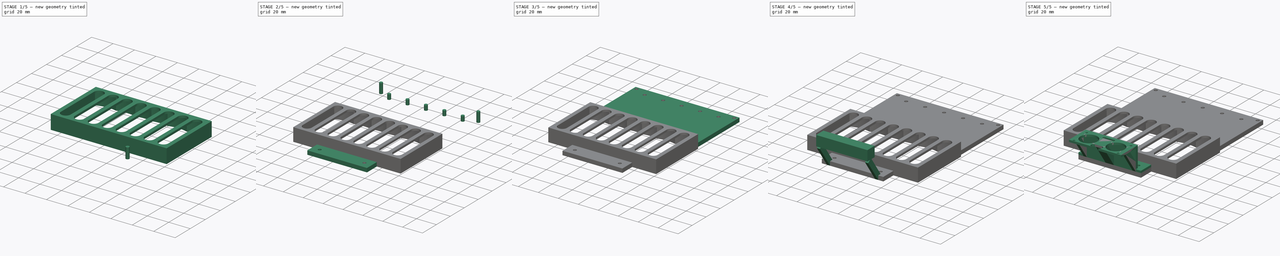
[diagram: build sequence overview — one tinted view per stage of 5, left to right]
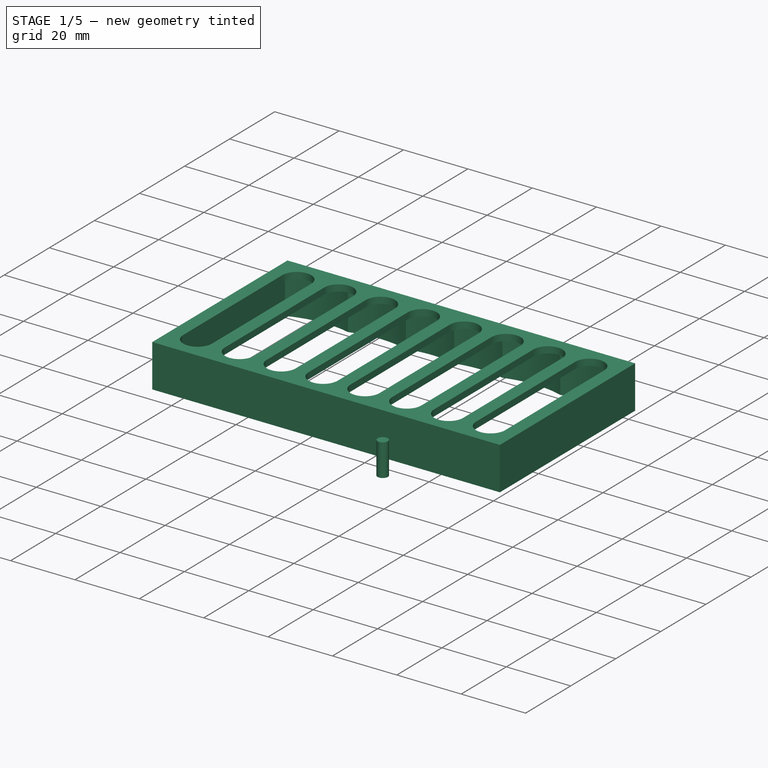
[diagram: stage 1 of 5 — iso view after this stage's code; geometry added in this stage tinted green]
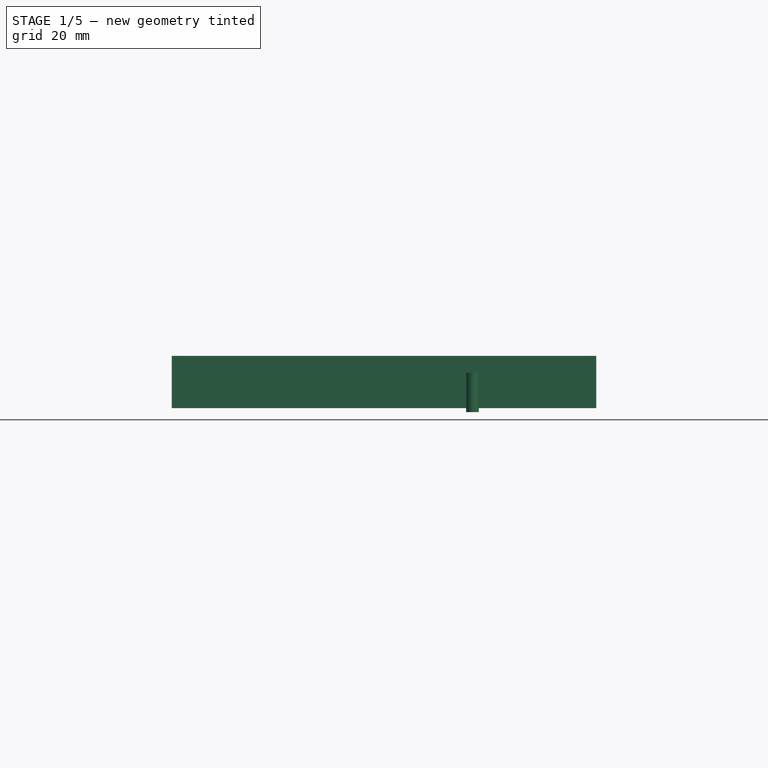
[diagram: stage 1 of 5 — front view after this stage's code; geometry added in this stage tinted green]
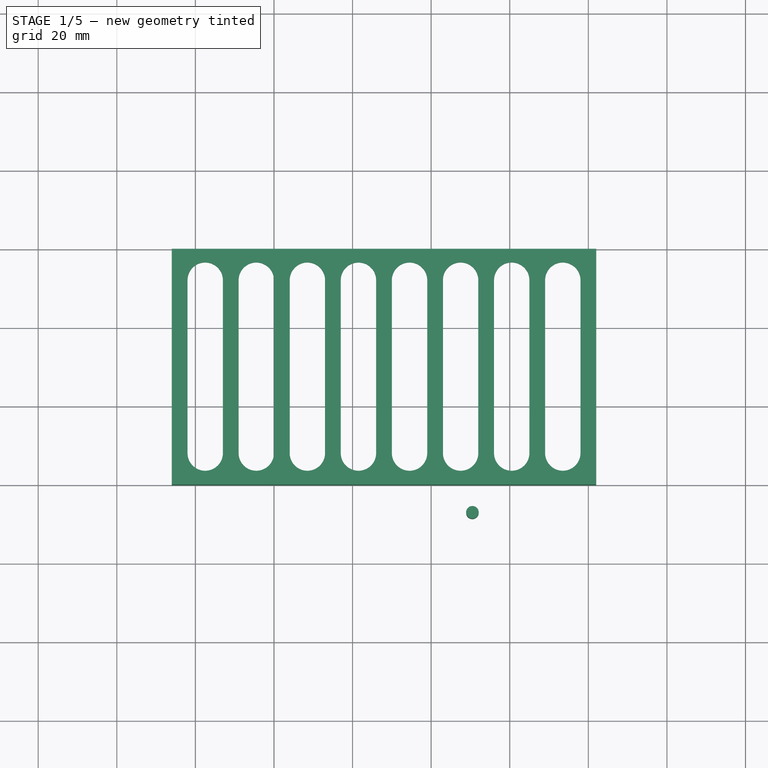
[diagram: stage 1 of 5 — top view after this stage's code; geometry added in this stage tinted green]
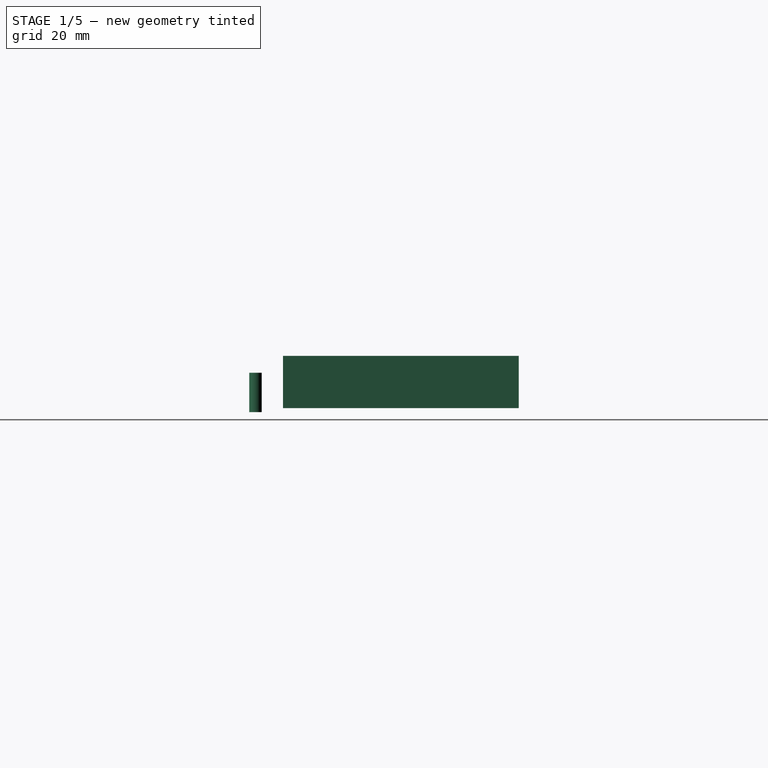
[diagram: stage 1 of 5 — right view after this stage's code; geometry added in this stage tinted green]
FCSTD DOCUMENT  (FreeCAD 1.0R39285 (Git))
Label: BottomPlatform
License: All rights reserved
LicenseURL: https://en.wikipedia.org/wiki/All_rights_reserved
objects: Part::Cut×13, Part::Box×11, Part::Cylinder×8, Sketcher::SketchObject×4, Part::Extrusion×4, Part::MultiFuse×4
note: 48 computed .brp shape members not serialized (recipe doc carries the construction recipe); baked Part::Feature solids carry a one-line shape summary decoded from their .brp

FEATURE [Part::Box] Box002  label="Cube002"
  AttacherType = Attacher::AttachEngine3D
  Height = 11.3
  Length = 108
  Placement = pos=(-54,-30,0) rot=(0,0,1;0rad)
  Width = 60
FEATURE [Sketcher::SketchObject] Sketch001
  ArcFitTolerance = 1e-06
  FullyConstrained = true
  MakeInternals = false
  sketch-geometry (14):
    g0: LineSegment StartX=51.7 StartY=-25.6145 StartZ=0 EndX=51.7 EndY=25.6145 EndZ=0
    g1: LineSegment StartX=-51.7 StartY=25.6145 StartZ=0 EndX=-51.7 EndY=-25.6145 EndZ=0
    g2: ArcOfCircle CenterX=-40.5 CenterY=-1.76818 CenterZ=0 NormalX=0 NormalY=0 NormalZ=1 AngleXU=0 Radius=29.5846 StartAngle=1.31449 EndAngle=1.95905
    g3: ArcOfCircle CenterX=-24 CenterY=-1.76818 CenterZ=0 NormalX=0 NormalY=0 NormalZ=1 AngleXU=0 Radius=30 StartAngle=1.2661 EndAngle=1.87549
    g4: ArcOfCircle CenterX=-7.5 CenterY=-1.76818 CenterZ=0 NormalX=0 NormalY=0 NormalZ=1 AngleXU=0 Radius=29.5846 StartAngle=1.31449 EndAngle=1.8271
    g5: ArcOfCircle CenterX=7.5 CenterY=-1.76818 CenterZ=0 NormalX=0 NormalY=0 NormalZ=1 AngleXU=0 Radius=29.5846 StartAngle=1.31449 EndAngle=1.8271
    g6: ArcOfCircle CenterX=24 CenterY=-1.76818 CenterZ=0 NormalX=0 NormalY=0 NormalZ=1 AngleXU=0 Radius=30 StartAngle=1.2661 EndAngle=1.87549
    g7: ArcOfCircle CenterX=40.5 CenterY=-1.76818 CenterZ=0 NormalX=0 NormalY=0 NormalZ=1 AngleXU=0 Radius=29.5846 StartAngle=1.18254 EndAngle=1.8271
    g8: ArcOfCircle CenterX=-40.5 CenterY=1.76818 CenterZ=0 NormalX=0 NormalY=0 NormalZ=1 AngleXU=0 Radius=29.5846 StartAngle=4.32413 EndAngle=4.9687
    g9: ArcOfCircle CenterX=-24 CenterY=1.76818 CenterZ=0 NormalX=0 NormalY=0 NormalZ=1 AngleXU=0 Radius=30 StartAngle=4.4077 EndAngle=5.01708
    g10: ArcOfCircle CenterX=-7.5 CenterY=1.76818 CenterZ=0 NormalX=0 NormalY=0 NormalZ=1 AngleXU=0 Radius=29.5846 StartAngle=4.45608 EndAngle=4.9687
    g11: ArcOfCircle CenterX=7.5 CenterY=1.76818 CenterZ=0 NormalX=0 NormalY=0 NormalZ=1 AngleXU=0 Radius=29.5846 StartAngle=4.45608 EndAngle=4.9687
    g12: ArcOfCircle CenterX=24 CenterY=1.76818 CenterZ=0 NormalX=0 NormalY=0 NormalZ=1 AngleXU=0 Radius=30 StartAngle=4.4077 EndAngle=5.01708
    g13: ArcOfCircle CenterX=40.5 CenterY=1.76818 CenterZ=0 NormalX=0 NormalY=0 NormalZ=1 AngleXU=0 Radius=29.5846 StartAngle=4.45608 EndAngle=5.10065
  constraints (46):
    c: Vertical(g0)
    c: Coincident(g2,g1)
    c: Coincident(g3,g2)
    c: Coincident(g4,g3)
    c: Coincident(g5,g4)
    c: Coincident(g6,g5)
    c: Coincident(g7,g6)
    c: Coincident(g7,g0)
    c: Vertical(g1)
    c: Horizontal(g1,g0)
    c: Horizontal(g7,g6)
    c: Horizontal(g6,g5)
    c: Horizontal(g3,g2)
    c: Horizontal(g6,g5)
    c: Horizontal(g5,g4)
    c: Horizontal(g4,g3)
    c: Horizontal(g3,g2)
    c: PointOnObject(g4,g-2)
    c: Symmetric(g0,g1,g-2)
    c: Symmetric(g5,g4,g-2)
    c: Symmetric(g6,g3,g-2)
    c: Distance(g0,g1) = 103.4
    c: Coincident(g8,g1)
    c: Coincident(g9,g8)
    c: Coincident(g10,g9)
    c: Coincident(g11,g10)
    c: Coincident(g12,g11)
    c: Coincident(g13,g12)
    c: Coincident(g13,g0)
    c: Symmetric(g10,g11,g-2)
    c: Symmetric(g9,g12,g-2)
    c: Symmetric(g13,g8,g-2)
    c: Horizontal(g8,g9)
    c: Horizontal(g9,g10)
    c: Vertical(g8,g2)
    c: Vertical(g3,g9)
    c: Horizontal(g8,g9)
    c: Horizontal(g9,g10)
    c: DistanceY(g12,g6) = 53.7
    c: DistanceX(g4,g5) = 15
    c: DistanceX(g5,g6) = 16.5
    c: DistanceX(g6,g7) = 16.5
    c: Horizontal(g11,g10)
    c: Symmetric(g10,g4,g-1)
    c: Symmetric(g11,g5,g-1)
    c: Distance(g6,g5) = 30
FEATURE [Part::Extrusion] Extrude001
  Base = -> Sketch001
  Dir = (0,0,1)
  DirMode = 2
  FaceMakerClass = Part::FaceMakerBullseye
  FaceMakerMode = 3
  LengthFwd = 16
  LengthRev = 0
  Solid = true
  Symmetric = false
FEATURE [Part::Cut] Cut009  label="Eraser"
  Base = -> Box002
  Placement = pos=(-52,-30,0) rot=(0,0,1;0rad)
  Tool = -> Extrude001
FEATURE [Part::Box] Box  label="Cube"
  AttacherType = Attacher::AttachEngine3D
  Height = 2
  Length = 108
  Placement = pos=(-106,-60,9.8) rot=(0,0,1;0rad)
  Width = 60
FEATURE [Sketcher::SketchObject] Sketch002
  ArcFitTolerance = 1e-06
  FullyConstrained = true
  MakeInternals = false
  Placement = pos=(0,0,9) rot=(0,0,1;0rad)
  sketch-geometry (32):
    g0: ArcOfCircle CenterX=-6.5 CenterY=-8 CenterZ=0 NormalX=0 NormalY=0 NormalZ=1 AngleXU=0 Radius=4.5 StartAngle=-7.1e-15 EndAngle=3.14159
    g1: ArcOfCircle CenterX=-6.5 CenterY=-52 CenterZ=0 NormalX=0 NormalY=0 NormalZ=1 AngleXU=0 Radius=4.5 StartAngle=3.14159 EndAngle=6.28319
    g2: LineSegment StartX=-2 StartY=-8 StartZ=0 EndX=-2 EndY=-52 EndZ=0
    g3: LineSegment StartX=-11 StartY=-8 StartZ=0 EndX=-11 EndY=-52 EndZ=0
    g4: ArcOfCircle CenterX=-32.5 CenterY=-8 CenterZ=0 NormalX=0 NormalY=0 NormalZ=1 AngleXU=0 Radius=4.5 StartAngle=4e-16 EndAngle=3.14159
    g5: ArcOfCircle CenterX=-32.5 CenterY=-52 CenterZ=0 NormalX=0 NormalY=0 NormalZ=1 AngleXU=0 Radius=4.5 StartAngle=3.14159 EndAngle=6.28319
    g6: LineSegment StartX=-28 StartY=-8 StartZ=0 EndX=-28 EndY=-52 EndZ=0
    g7: LineSegment StartX=-37 StartY=-8 StartZ=0 EndX=-37 EndY=-52 EndZ=0
    g8: ArcOfCircle CenterX=-71.5 CenterY=-8 CenterZ=0 NormalX=0 NormalY=0 NormalZ=1 AngleXU=0 Radius=4.5 StartAngle=2e-16 EndAngle=3.14159
    g9: ArcOfCircle CenterX=-71.5 CenterY=-52 CenterZ=0 NormalX=0 NormalY=0 NormalZ=1 AngleXU=0 Radius=4.5 StartAngle=3.14159 EndAngle=6.28319
    g10: LineSegment StartX=-67 StartY=-8 StartZ=0 EndX=-67 EndY=-52 EndZ=0
    g11: LineSegment StartX=-76 StartY=-8 StartZ=0 EndX=-76 EndY=-52 EndZ=0
    g12: ArcOfCircle CenterX=-19.5 CenterY=-8 CenterZ=0 NormalX=0 NormalY=0 NormalZ=1 AngleXU=0 Radius=4.5 StartAngle=2.4e-15 EndAngle=3.14159
    g13: ArcOfCircle CenterX=-19.5 CenterY=-52 CenterZ=0 NormalX=0 NormalY=0 NormalZ=1 AngleXU=0 Radius=4.5 StartAngle=3.14159 EndAngle=6.28319
    g14: LineSegment StartX=-15 StartY=-8 StartZ=0 EndX=-15 EndY=-52 EndZ=0
    g15: LineSegment StartX=-24 StartY=-8 StartZ=0 EndX=-24 EndY=-52 EndZ=0
    g16: ArcOfCircle CenterX=-45.5 CenterY=-8 CenterZ=0 NormalX=0 NormalY=0 NormalZ=1 AngleXU=0 Radius=4.5 StartAngle=4e-16 EndAngle=3.14159
    g17: ArcOfCircle CenterX=-45.5 CenterY=-52 CenterZ=0 NormalX=0 NormalY=0 NormalZ=1 AngleXU=0 Radius=4.5 StartAngle=3.14159 EndAngle=6.28319
    g18: LineSegment StartX=-41 StartY=-8 StartZ=0 EndX=-41 EndY=-52 EndZ=0
    g19: LineSegment StartX=-50 StartY=-8 StartZ=0 EndX=-50 EndY=-52 EndZ=0
    g20: ArcOfCircle CenterX=-84.5 CenterY=-8 CenterZ=0 NormalX=0 NormalY=0 NormalZ=1 AngleXU=0 Radius=4.5 StartAngle=1e-16 EndAngle=3.14159
    g21: ArcOfCircle CenterX=-84.5 CenterY=-52 CenterZ=0 NormalX=0 NormalY=0 NormalZ=1 AngleXU=0 Radius=4.5 StartAngle=3.14159 EndAngle=6.28319
    g22: LineSegment StartX=-80 StartY=-8 StartZ=0 EndX=-80 EndY=-52 EndZ=0
    g23: LineSegment StartX=-89 StartY=-8 StartZ=0 EndX=-89 EndY=-52 EndZ=0
    g24: ArcOfCircle CenterX=-97.5 CenterY=-8 CenterZ=0 NormalX=0 NormalY=0 NormalZ=1 AngleXU=0 Radius=4.5 StartAngle=1e-16 EndAngle=3.14159
    g25: ArcOfCircle CenterX=-97.5 CenterY=-52 CenterZ=0 NormalX=0 NormalY=0 NormalZ=1 AngleXU=0 Radius=4.5 StartAngle=3.14159 EndAngle=6.28319
    g26: LineSegment StartX=-93 StartY=-8 StartZ=0 EndX=-93 EndY=-52 EndZ=0
    g27: LineSegment StartX=-102 StartY=-8 StartZ=0 EndX=-102 EndY=-52 EndZ=0
    g28: ArcOfCircle CenterX=-58.5 CenterY=-8 CenterZ=0 NormalX=0 NormalY=0 NormalZ=1 AngleXU=0 Radius=4.5 StartAngle=3e-16 EndAngle=3.14159
    g29: ArcOfCircle CenterX=-58.5 CenterY=-52 CenterZ=0 NormalX=0 NormalY=0 NormalZ=1 AngleXU=0 Radius=4.5 StartAngle=3.14159 EndAngle=6.28319
    g30: LineSegment StartX=-54 StartY=-8 StartZ=0 EndX=-54 EndY=-52 EndZ=0
    g31: LineSegment StartX=-63 StartY=-8 StartZ=0 EndX=-63 EndY=-52 EndZ=0
  constraints (80):
    c: Tangent(g0,g2) = 1.5708
    c: Tangent(g0,g3) = -1.5708
    c: Tangent(g1,g2) = 1.5708
    c: Tangent(g1,g3) = -1.5708
    c: Equal(g0,g1)
    c: Vertical(g3)
    c: DistanceX(g0,g0) = 4.5
    c: DistanceY(g1,g0) = 44
    c: Distance(g0,g-1) = 8
    c: Distance(g0,g-2) = 6.5
    c: Tangent(g4,g6) = 1.5708
    c: Tangent(g4,g7) = -1.5708
    c: Tangent(g5,g6) = 1.5708
    c: Tangent(g5,g7) = -1.5708
    c: Equal(g4,g5)
    c: Radius(g4) = 4.5
    c: Vertical(g6)
    c: Horizontal(g4,g0)
    c: Horizontal(g5,g1)
    c: Tangent(g8,g10) = 1.5708
    c: Tangent(g8,g11) = -1.5708
    c: Tangent(g9,g10) = 1.5708
    c: Tangent(g9,g11) = -1.5708
    c: Equal(g8,g9)
    c: Radius(g8) = 4.5
    c: Vertical(g10)
    c: Tangent(g12,g14) = 1.5708
    c: Tangent(g12,g15) = -1.5708
    c: Tangent(g13,g14) = 1.5708
    c: Tangent(g13,g15) = -1.5708
    c: Equal(g12,g13)
    c: Radius(g12) = 4.5
    c: Vertical(g14)
    c: Horizontal(g12,g0)
    c: Horizontal(g13,g1)
    c: Horizontal(g9,g1)
    c: Horizontal(g8,g0)
    c: DistanceX(g12,g0) = 13
    c: DistanceX(g4,g12) = 13
    c: Tangent(g16,g18) = 1.5708
    c: Tangent(g16,g19) = -1.5708
    c: Tangent(g17,g18) = 1.5708
    c: Tangent(g17,g19) = -1.5708
    c: Equal(g16,g17)
    c: Radius(g16) = 4.5
    c: Vertical(g18)
    c: Horizontal(g16,g0)
    c: Horizontal(g17,g1)
    c: Tangent(g20,g22) = 1.5708
    c: Tangent(g20,g23) = -1.5708
    c: Tangent(g21,g22) = 1.5708
    c: Tangent(g21,g23) = -1.5708
    c: Equal(g20,g21)
    c: Radius(g20) = 4.5
    c: Vertical(g22)
    c: Tangent(g24,g26) = 1.5708
    c: Tangent(g24,g27) = -1.5708
    c: Tangent(g25,g26) = 1.5708
    c: Tangent(g25,g27) = -1.5708
    c: Equal(g24,g25)
    c: Radius(g24) = 4.5
    c: Vertical(g26)
    c: Horizontal(g20,g0)
    c: Horizontal(g21,g1)
    c: Tangent(g28,g30) = 1.5708
    c: Tangent(g28,g31) = -1.5708
    c: Tangent(g29,g30) = 1.5708
    c: Tangent(g29,g31) = -1.5708
    c: Equal(g28,g29)
    c: Radius(g28) = 4.5
    c: Vertical(g30)
    c: Horizontal(g24,g0)
    c: Horizontal(g25,g1)
    c: DistanceX(g16,g4) = 13
    c: DistanceX(g28,g16) = 13
    c: DistanceX(g8,g28) = 13
    c: DistanceX(g20,g8) = 13
    c: DistanceX(g24,g20) = 13
    c: Horizontal(g29,g1)
    c: Horizontal(g28,g0)
FEATURE [Part::Extrusion] Extrude002
  Base = -> Sketch002
  Dir = (0,0,1)
  DirMode = 2
  FaceMakerClass = Part::FaceMakerBullseye
  FaceMakerMode = 3
  LengthFwd = 10
  LengthRev = 0
  Solid = true
  Symmetric = false
FEATURE [Part::Cut] Cut010  label="Lid"
  Base = -> Box
  Placement = pos=(0,0,1.5) rot=(0,0,1;0rad)
  Tool = -> Extrude002
FEATURE [Part::Cylinder] Cylinder
  Angle = 360
  AttacherType = Attacher::AttachEngine3D
  FirstAngle = 0
  Height = 10
  Placement = pos=(-29.5,-67,-1) rot=(0,0,1;0rad)
  Radius = 1.6
  SecondAngle = 0
FEATURE [Part::MultiFuse] Fusion002  label="Eraser Holder"
  Shapes = -> [Cut009,Cut010]
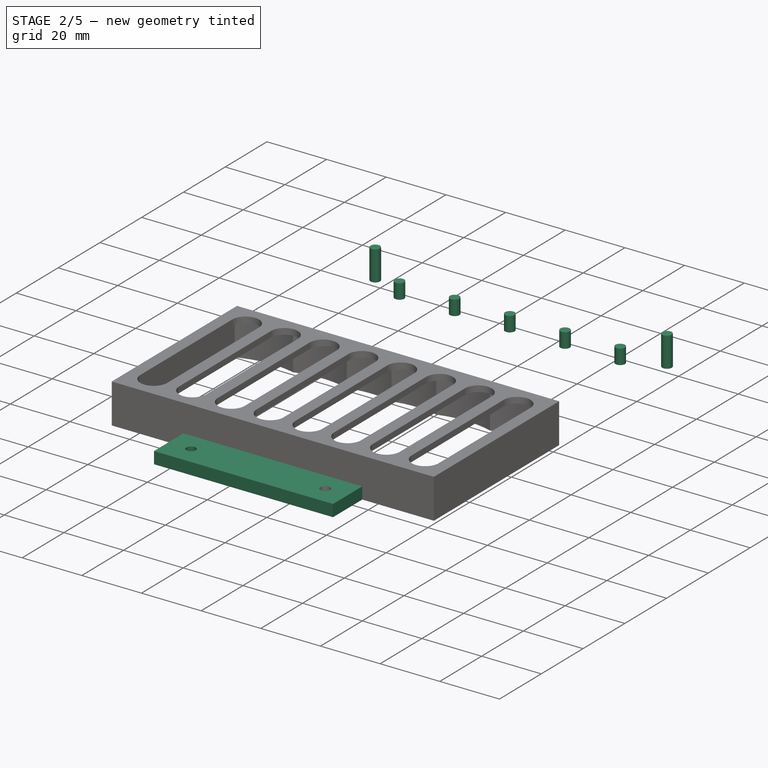
[diagram: stage 2 of 5 — iso view after this stage's code; geometry added in this stage tinted green]
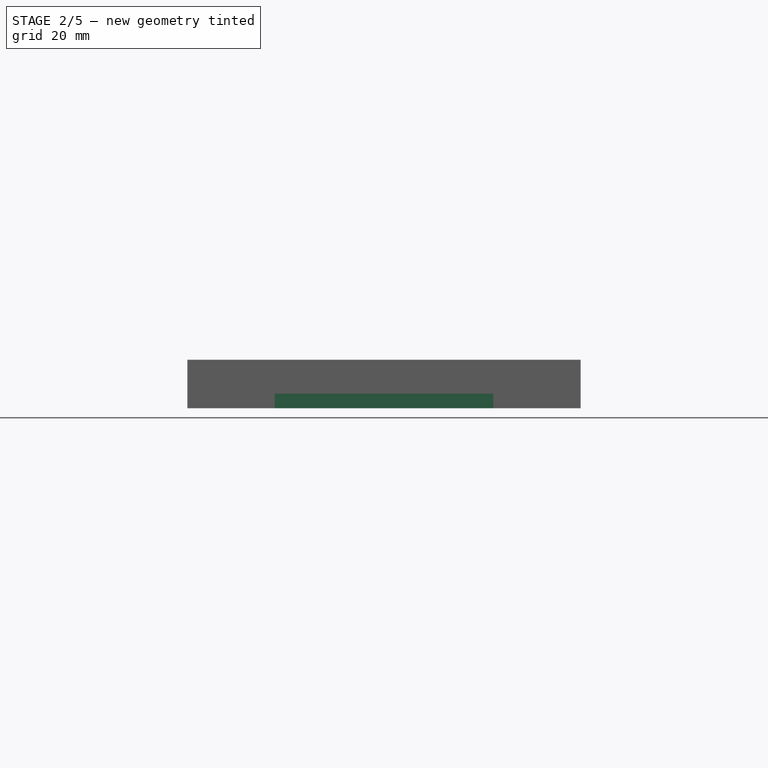
[diagram: stage 2 of 5 — front view after this stage's code; geometry added in this stage tinted green]
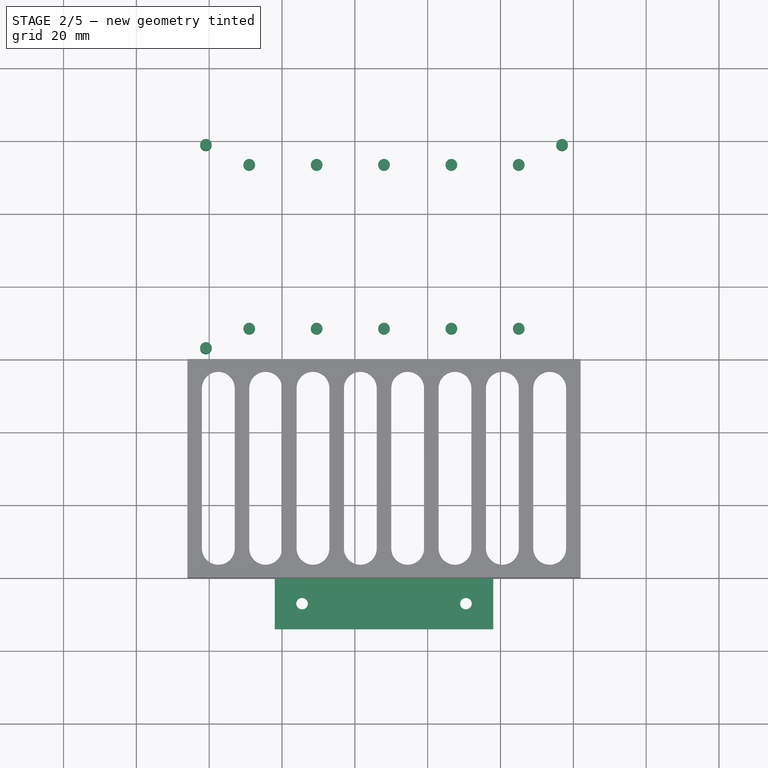
[diagram: stage 2 of 5 — top view after this stage's code; geometry added in this stage tinted green]
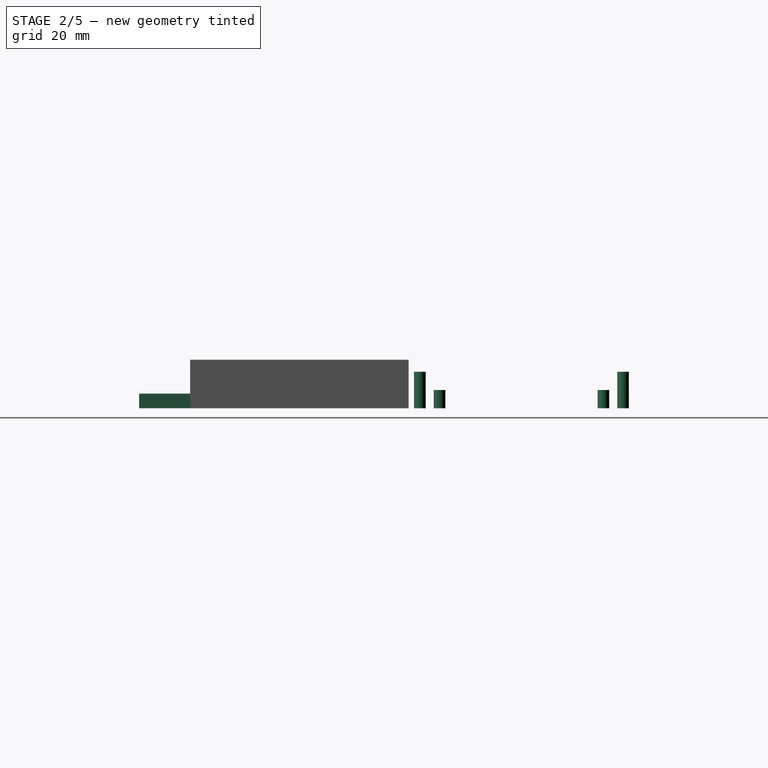
[diagram: stage 2 of 5 — right view after this stage's code; geometry added in this stage tinted green]
FEATURE [Part::Cylinder] Cylinder005  label="Mount Point001"
  Angle = 360
  AttacherType = Attacher::AttachEngine3D
  FirstAngle = 0
  Height = 10
  Placement = pos=(-100.9,3.1,0) rot=(0,0,1;0rad)
  Radius = 1.6
  SecondAngle = 0
FEATURE [Part::Cylinder] Cylinder006  label="Mount Point002"
  Angle = 360
  AttacherType = Attacher::AttachEngine3D
  FirstAngle = 0
  Height = 10
  Placement = pos=(-100.9,58.9,0) rot=(0,0,1;0rad)
  Radius = 1.6
  SecondAngle = 0
FEATURE [Part::Cylinder] Cylinder007  label="Mount Point003"
  Angle = 360
  AttacherType = Attacher::AttachEngine3D
  FirstAngle = 0
  Height = 10
  Placement = pos=(-3.1,58.9,0) rot=(0,0,1;0rad)
  Radius = 1.6
  SecondAngle = 0
FEATURE [Sketcher::SketchObject] Sketch
  ArcFitTolerance = 1e-06
  FullyConstrained = true
  MakeInternals = false
  sketch-geometry (10):
    g0: Circle CenterX=-89 CenterY=8.5 CenterZ=0 NormalX=0 NormalY=0 NormalZ=1 AngleXU=0 Radius=1.6
    g1: Circle CenterX=-52 CenterY=8.5 CenterZ=0 NormalX=0 NormalY=0 NormalZ=1 AngleXU=0 Radius=1.6
    g2: Circle CenterX=-52 CenterY=53.5 CenterZ=0 NormalX=0 NormalY=0 NormalZ=1 AngleXU=0 Radius=1.6
    g3: Circle CenterX=-89 CenterY=53.5 CenterZ=0 NormalX=0 NormalY=0 NormalZ=1 AngleXU=0 Radius=1.6
    g4: Circle CenterX=-15 CenterY=8.5 CenterZ=0 NormalX=0 NormalY=0 NormalZ=1 AngleXU=0 Radius=1.6
    g5: Circle CenterX=-15 CenterY=53.5 CenterZ=0 NormalX=0 NormalY=0 NormalZ=1 AngleXU=0 Radius=1.6
    g6: Circle CenterX=-33.5 CenterY=53.5 CenterZ=0 NormalX=0 NormalY=0 NormalZ=1 AngleXU=0 Radius=1.6
    g7: Circle CenterX=-33.5 CenterY=8.5 CenterZ=0 NormalX=0 NormalY=0 NormalZ=1 AngleXU=0 Radius=1.6
    g8: Circle CenterX=-70.5 CenterY=53.5 CenterZ=0 NormalX=0 NormalY=0 NormalZ=1 AngleXU=0 Radius=1.6
    g9: Circle CenterX=-70.5 CenterY=8.5 CenterZ=0 NormalX=0 NormalY=0 NormalZ=1 AngleXU=0 Radius=1.6
  constraints (28):
    c: Diameter(g0) = 3.2
    c: Diameter(g1) = 3.2
    c: Diameter(g2) = 3.2
    c: DistanceY(g1,g2) = 45
    c: Diameter(g3) = 3.2
    c: Horizontal(g3,g2)
    c: Vertical(g2,g1)
    c: Horizontal(g0,g1)
    c: Vertical(g0,g3)
    c: Diameter(g4) = 3.2
    c: Diameter(g5) = 3.2
    c: Vertical(g4,g5)
    c: Horizontal(g5,g2)
    c: Symmetric(g0,g4,g1)
    c: DistanceY(g-1,g4) = 8.5
    c: DistanceX(g4,g-1) = 15
    c: DistanceX(g0,g4) = 74
    c: Diameter(g6) = 3.2
    c: Diameter(g7) = 3.2
    c: Diameter(g8) = 3.2
    c: Diameter(g9) = 3.2
    c: Horizontal(g6,g2)
    c: Horizontal(g8,g2)
    c: Horizontal(g1,g9)
    c: Vertical(g7,g6)
    c: Vertical(g8,g9)
    c: Symmetric(g9,g7,g1)
    c: DistanceX(g9,g7) = 37
FEATURE [Part::Extrusion] Extrude
  Base = -> Sketch
  Dir = (0,0,1)
  DirMode = 2
  FaceMakerClass = Part::FaceMakerBullseye
  FaceMakerMode = 3
  LengthFwd = 5
  LengthRev = 0
  Solid = true
  Symmetric = false
FEATURE [Part::Box] Box003  label="Cube003"
  AttacherType = Attacher::AttachEngine3D
  Height = 4
  Length = 60
  Placement = pos=(-82,-74,0) rot=(0,0,1;0rad)
  Width = 14
FEATURE [Part::Cylinder] Cylinder008
  Angle = 360
  AttacherType = Attacher::AttachEngine3D
  FirstAngle = 0
  Height = 10
  Placement = pos=(-74.5,-67,-1) rot=(0,0,1;0rad)
  Radius = 1.6
  SecondAngle = 0
FEATURE [Part::Cut] Cut011
  Base = -> Box003
  Tool = -> Cylinder
FEATURE [Part::Cut] Cut012  label="Front Magnet Holder"
  Base = -> Cut011
  Tool = -> Cylinder008
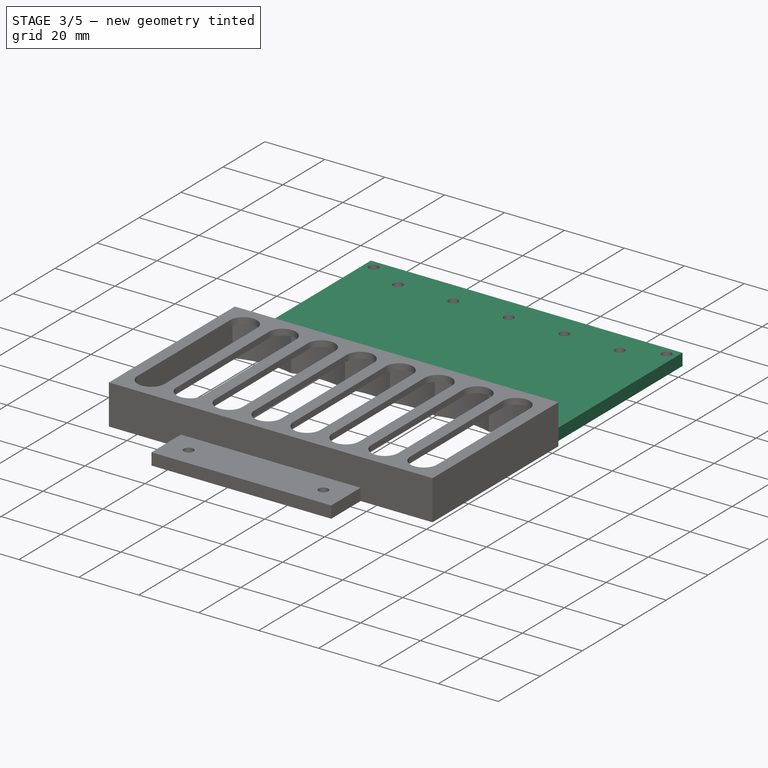
[diagram: stage 3 of 5 — iso view after this stage's code; geometry added in this stage tinted green]
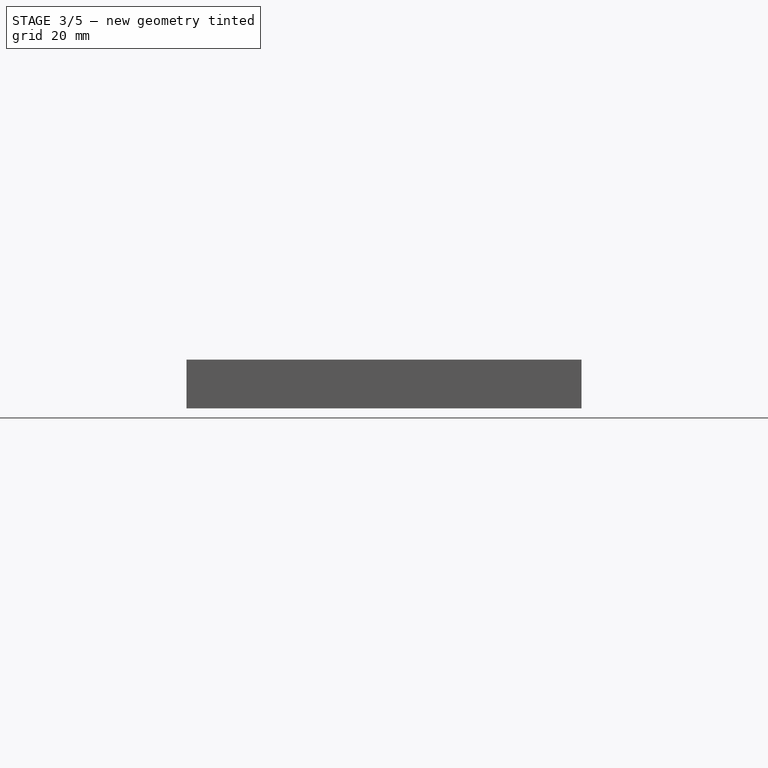
[diagram: stage 3 of 5 — front view after this stage's code; geometry added in this stage tinted green]
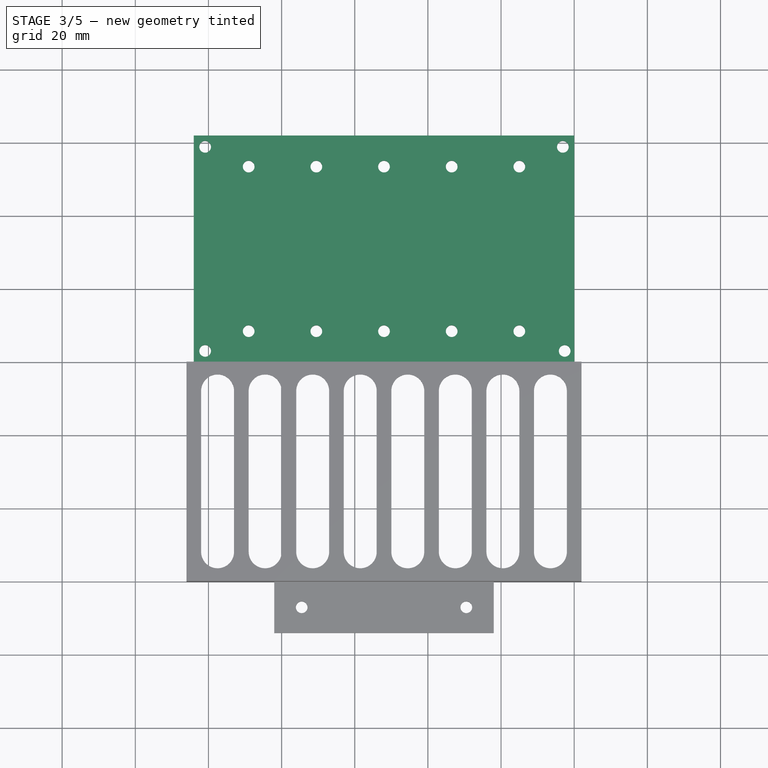
[diagram: stage 3 of 5 — top view after this stage's code; geometry added in this stage tinted green]
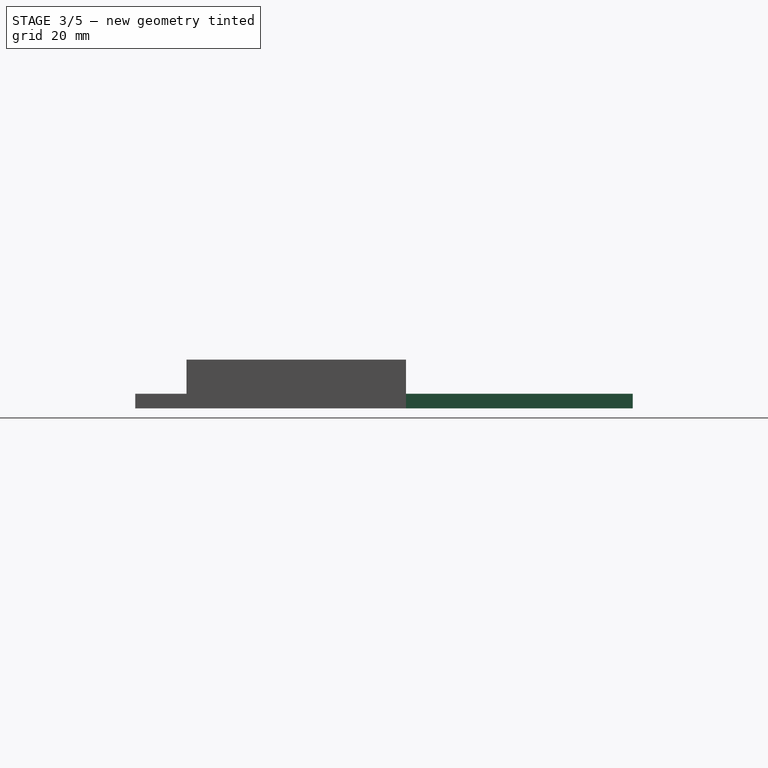
[diagram: stage 3 of 5 — right view after this stage's code; geometry added in this stage tinted green]
FEATURE [Part::Box] Box001  label="Cube001"
  AttacherType = Attacher::AttachEngine3D
  Height = 4
  Length = 104
  Placement = pos=(-104,0,0) rot=(0,0,1;0rad)
  Width = 62
FEATURE [Part::Cylinder] Cylinder004  label="Mount Point"
  Angle = 360
  AttacherType = Attacher::AttachEngine3D
  FirstAngle = 0
  Height = 10
  Placement = pos=(-2.6,3.1,0) rot=(0,0,1;0rad)
  Radius = 1.6
  SecondAngle = 0
FEATURE [Part::Cut] Cut005
  Base = -> Box001
  Tool = -> Cylinder004
FEATURE [Part::Cut] Cut006
  Base = -> Cut005
  Tool = -> Cylinder005
FEATURE [Part::Cut] Cut007
  Base = -> Cut006
  Tool = -> Cylinder006
FEATURE [Part::Cut] Cut008  label="Standard Platform"
  Base = -> Cut007
  Tool = -> Cylinder007
FEATURE [Part::Cut] Cut  label="Platform"
  Base = -> Cut008
  Tool = -> Extrude
FEATURE [Part::MultiFuse] Fusion004  label="Bottom Platform"
  Shapes = -> [Fusion002,Cut,Cut012]
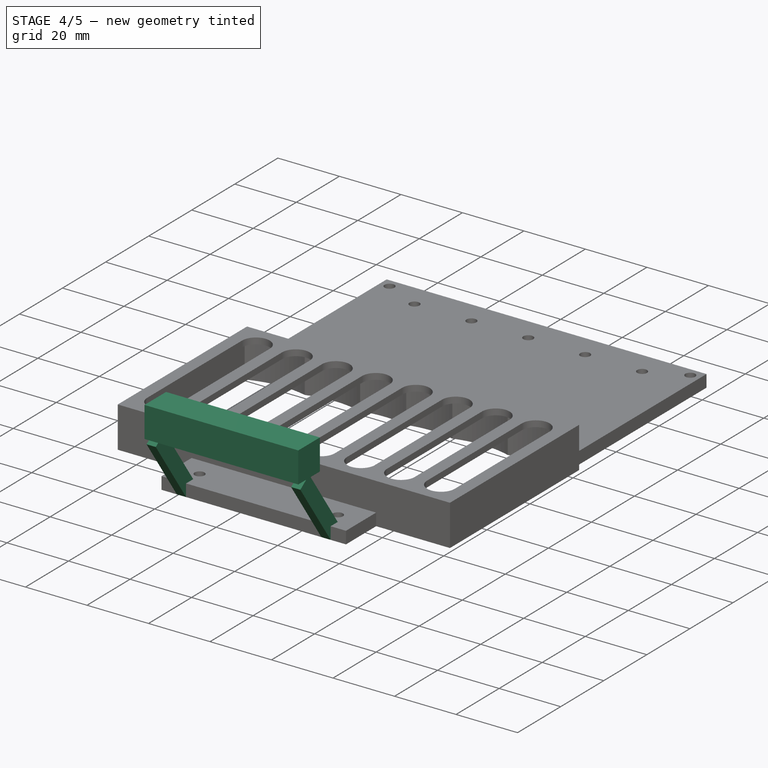
[diagram: stage 4 of 5 — iso view after this stage's code; geometry added in this stage tinted green]
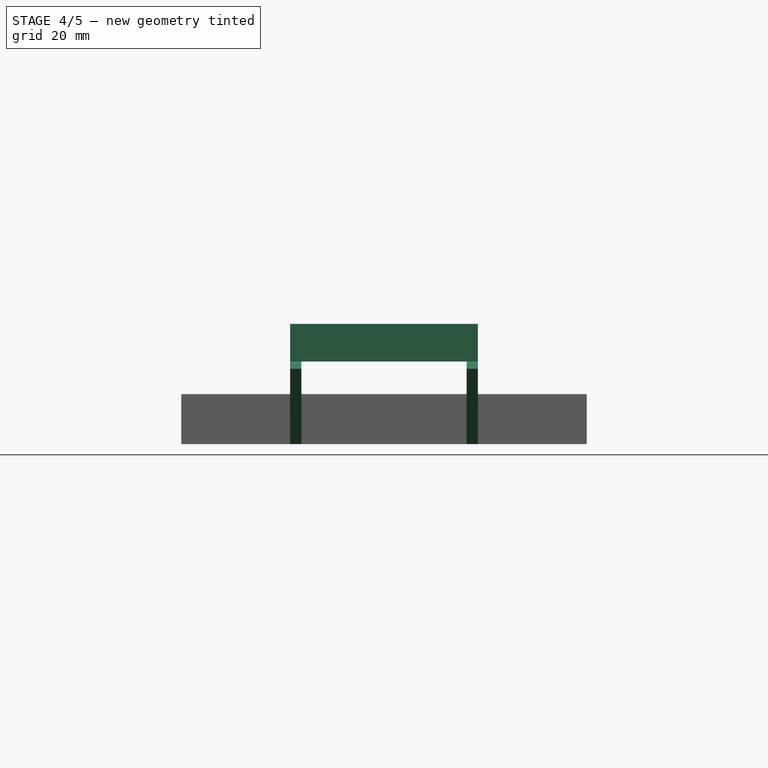
[diagram: stage 4 of 5 — front view after this stage's code; geometry added in this stage tinted green]
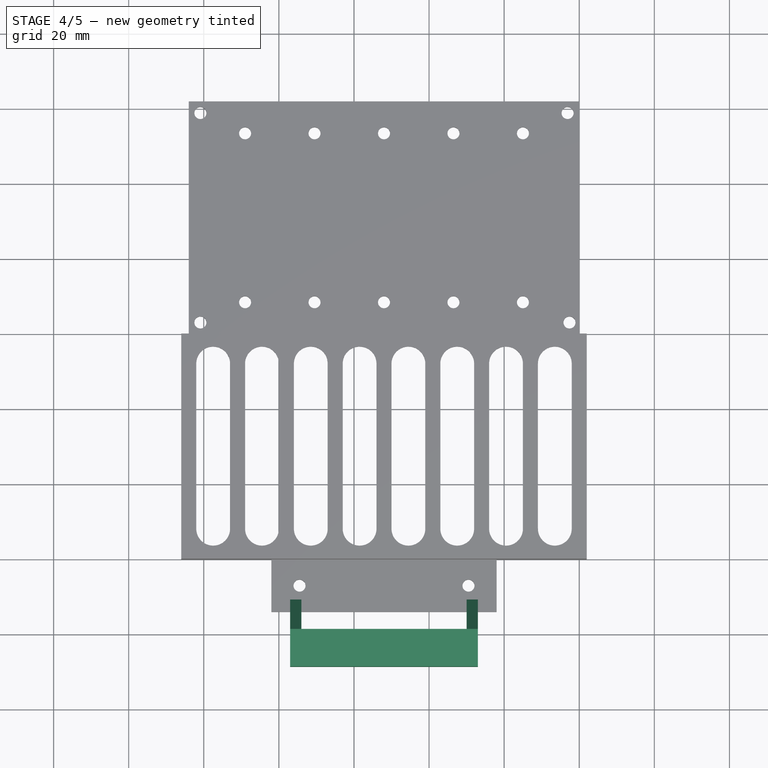
[diagram: stage 4 of 5 — top view after this stage's code; geometry added in this stage tinted green]
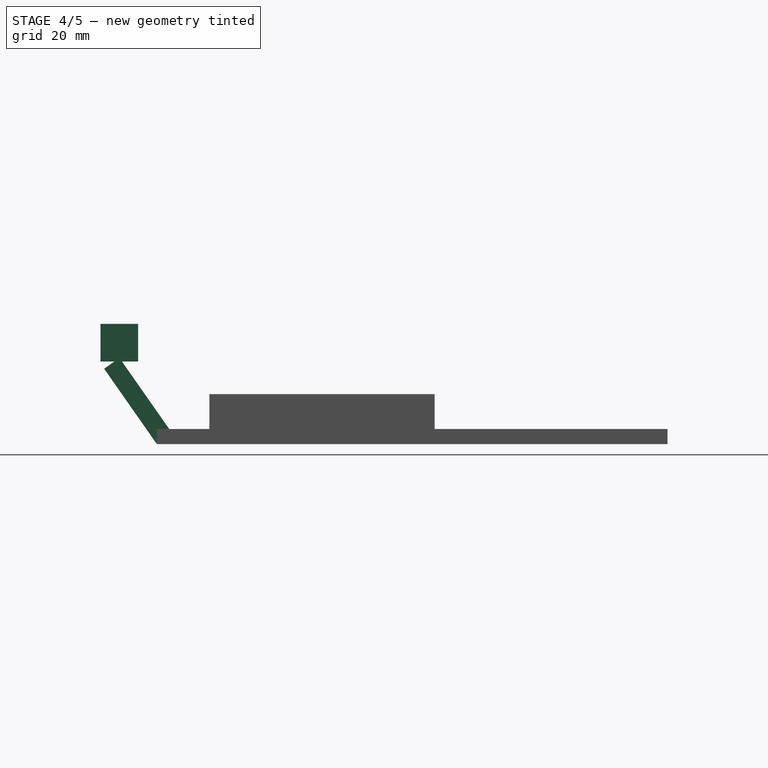
[diagram: stage 4 of 5 — right view after this stage's code; geometry added in this stage tinted green]
FEATURE [Part::Box] Box006  label="Right Support"
  AttacherType = Attacher::AttachEngine3D
  Height = 24.5
  Length = 3
  Placement = pos=(-30,-74,0) rot=(1,0,0;0.610865rad)
  Width = 5
FEATURE [Part::Box] Box007  label="Left Support"
  AttacherType = Attacher::AttachEngine3D
  Height = 24.5
  Length = 3
  Placement = pos=(-77,-74,0) rot=(1,0,0;0.610865rad)
  Width = 5
FEATURE [Part::Box] Box008  label="Flattener"
  AttacherType = Attacher::AttachEngine3D
  Height = 10
  Length = 50
  Placement = pos=(-77,-89,22) rot=(0,0,1;0rad)
  Width = 10
FEATURE [Part::Box] Box010  label="Cube004"
  AttacherType = Attacher::AttachEngine3D
  Height = 2
  Length = 60
  Placement = pos=(-82,-74,0) rot=(0,0,1;0rad)
  Width = 14
FEATURE [Part::Cylinder] Cylinder009
  Angle = 360
  AttacherType = Attacher::AttachEngine3D
  FirstAngle = 0
  Height = 10
  Placement = pos=(-29.5,-67,-1) rot=(0,0,1;0rad)
  Radius = 1.6
  SecondAngle = 0
FEATURE [Part::Cut] Cut015
  Base = -> Box010
  Tool = -> Cylinder009
FEATURE [Part::Cylinder] Cylinder010
  Angle = 360
  AttacherType = Attacher::AttachEngine3D
  FirstAngle = 0
  Height = 10
  Placement = pos=(-74.5,-67,-1) rot=(0,0,1;0rad)
  Radius = 1.6
  SecondAngle = 0
FEATURE [Part::Cut] Cut016  label="Sensor Platform Mount"
  Base = -> Cut015
  Tool = -> Cylinder010
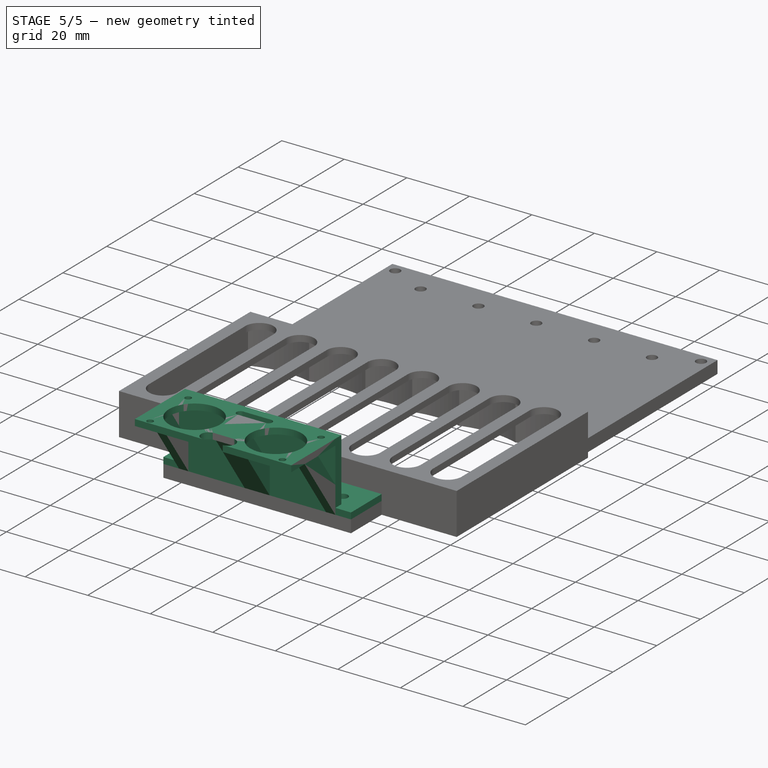
[diagram: stage 5 of 5 — iso view after this stage's code; geometry added in this stage tinted green]
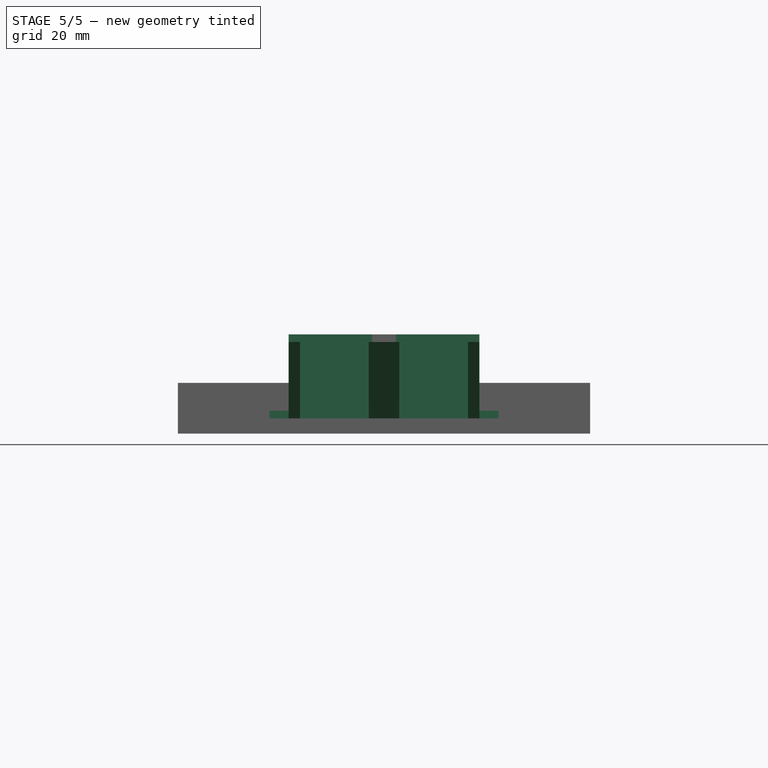
[diagram: stage 5 of 5 — front view after this stage's code; geometry added in this stage tinted green]
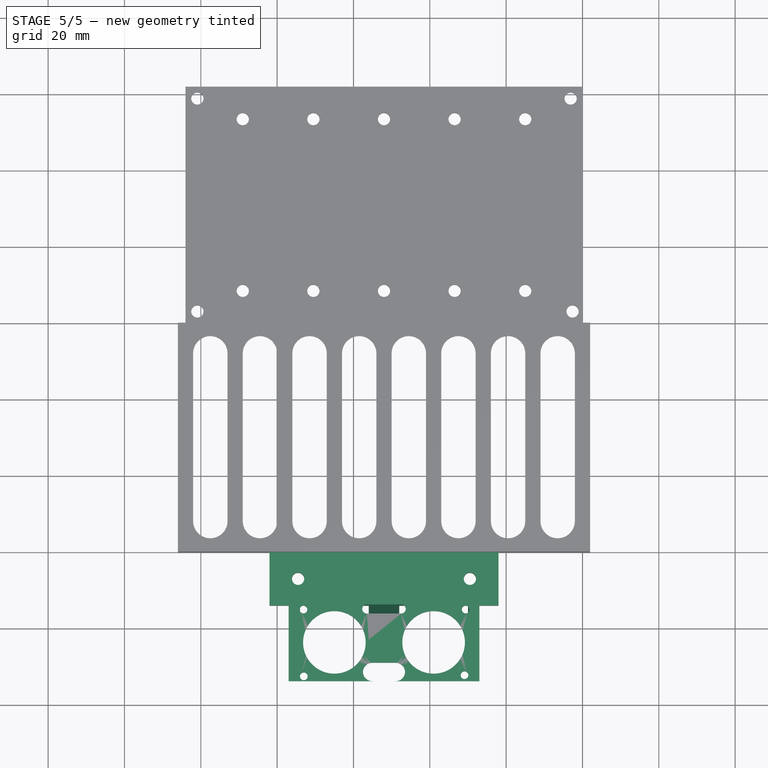
[diagram: stage 5 of 5 — top view after this stage's code; geometry added in this stage tinted green]
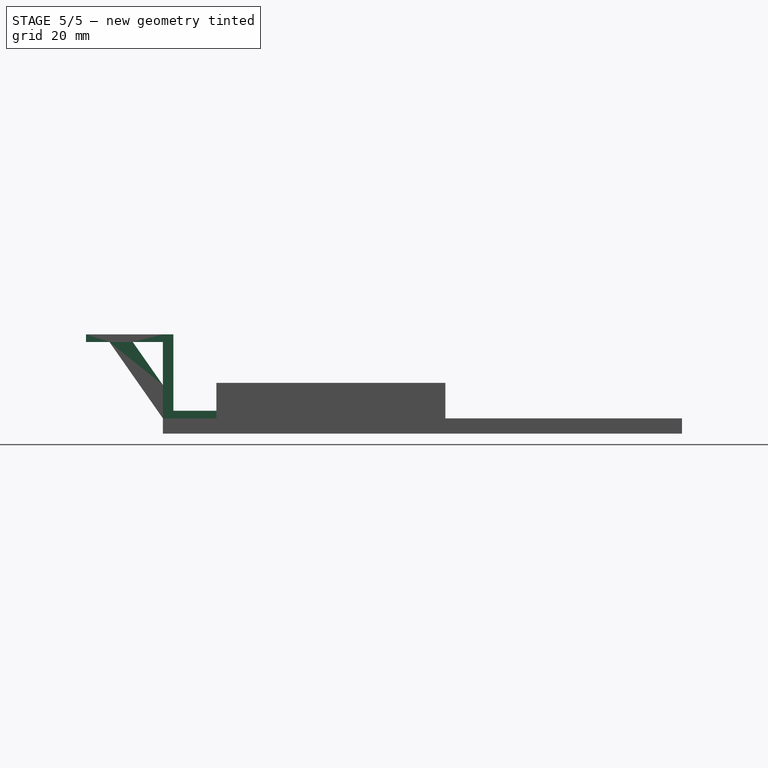
[diagram: stage 5 of 5 — right view after this stage's code; geometry added in this stage tinted green]
FEATURE [Sketcher::SketchObject] Sketch003
  ArcFitTolerance = 1e-06
  FullyConstrained = true
  MakeInternals = false
  sketch-geometry (18):
    g0: LineSegment StartX=-25 StartY=10.15 StartZ=0 EndX=-25 EndY=-10.15 EndZ=0
    g1: LineSegment StartX=-25 StartY=-10.15 StartZ=0 EndX=25 EndY=-10.15 EndZ=0
    g2: LineSegment StartX=25 StartY=-10.15 StartZ=0 EndX=25 EndY=10.15 EndZ=0
    g3: LineSegment StartX=25 StartY=10.15 StartZ=0 EndX=-25 EndY=10.15 EndZ=0
    g4: Circle CenterX=-13 CenterY=0 CenterZ=0 NormalX=0 NormalY=0 NormalZ=1 AngleXU=0 Radius=8.2
    g5: Circle CenterX=13 CenterY=0 CenterZ=0 NormalX=0 NormalY=0 NormalZ=1 AngleXU=0 Radius=8.2
    g6: Circle CenterX=-21.1 CenterY=8.6 CenterZ=0 NormalX=0 NormalY=0 NormalZ=1 AngleXU=0 Radius=1
    g7: Circle CenterX=-21.4 CenterY=-8.6 CenterZ=0 NormalX=0 NormalY=0 NormalZ=1 AngleXU=0 Radius=1
    g8: Circle CenterX=21.1 CenterY=-8.6 CenterZ=0 NormalX=0 NormalY=0 NormalZ=1 AngleXU=0 Radius=1
    g9: Circle CenterX=21 CenterY=8.9 CenterZ=0 NormalX=0 NormalY=0 NormalZ=1 AngleXU=0 Radius=1
    g10: ArcOfCircle CenterX=-3.1 CenterY=7.75 CenterZ=0 NormalX=0 NormalY=0 NormalZ=1 AngleXU=0 Radius=2.4 StartAngle=1.5708 EndAngle=4.71239
    g11: ArcOfCircle CenterX=3.1 CenterY=7.75 CenterZ=0 NormalX=0 NormalY=0 NormalZ=1 AngleXU=0 Radius=2.4 StartAngle=4.71239 EndAngle=7.85398
    g12: LineSegment StartX=-3.1 StartY=10.15 StartZ=0 EndX=3.1 EndY=10.15 EndZ=0
    g13: LineSegment StartX=-3.1 StartY=5.35 StartZ=0 EndX=3.1 EndY=5.35 EndZ=0
    g14: ArcOfCircle CenterX=-4.5 CenterY=-8.75 CenterZ=0 NormalX=0 NormalY=0 NormalZ=1 AngleXU=0 Radius=1.2 StartAngle=1.5708 EndAngle=4.71239
    g15: ArcOfCircle CenterX=4.5 CenterY=-8.75 CenterZ=0 NormalX=0 NormalY=0 NormalZ=1 AngleXU=0 Radius=1.2 StartAngle=4.71239 EndAngle=7.85398
    g16: LineSegment StartX=-4.5 StartY=-7.55 StartZ=0 EndX=4.5 EndY=-7.55 EndZ=0
    g17: LineSegment StartX=-4.5 StartY=-9.95 StartZ=0 EndX=4.5 EndY=-9.95 EndZ=0
  constraints (44):
    c: Coincident(g0,g1)
    c: Coincident(g1,g2)
    c: Coincident(g2,g3)
    c: Coincident(g3,g0)
    c: PointOnObject(g4,g-1)
    c: Symmetric(g2,g0,g-2)
    c: Symmetric(g1,g0,g-2)
    c: Symmetric(g2,g1,g-1)
    c: Symmetric(g5,g4,g-2)
    c: Equal(g5,g4)
    c: Diameter(g4) = 16.4
    c: Distance(g2,g0) = 50
    c: Distance(g1,g3) = 20.3
    c: DistanceX(g4,g5) = 26
    c: Diameter(g6) = 2
    c: Distance(g6,g3) = 0.55
    c: Diameter(g7) = 2
    c: Distance(g7,g1) = 0.55
    c: Diameter(g8) = 2
    c: Distance(g8,g1) = 0.55
    c: Diameter(g9) = 2
    c: Distance(g9,g3) = 0.25
    c: Tangent(g10,g12) = 1.5708
    c: Tangent(g10,g13) = -1.5708
    c: Tangent(g11,g12) = 1.5708
    c: Tangent(g11,g13) = -1.5708
    c: Equal(g10,g11)
    c: Symmetric(g11,g10,g-2)
    c: Distance(g10,g10) = 2.4
    c: DistanceX(g10,g11) = 6.2
    c: Distance(g3,g13) = 4.8
    c: Tangent(g14,g16) = 1.5708
    c: Tangent(g14,g17) = -1.5708
    c: Tangent(g15,g16) = 1.5708
    c: Tangent(g15,g17) = -1.5708
    c: Equal(g14,g15)
    c: Distance(g15,g15) = 1.2
    c: Symmetric(g15,g14,g-2)
    c: DistanceX(g14,g15) = 9
    c: Distance(g15,g1) = 1.4
    c: Distance(g6,g-2) = 21.1
    c: Distance(g7,g-2) = 21.4
    c: Distance(g9,g-2) = 21
    c: DistanceX(g-1,g8) = 21.1
FEATURE [Part::Extrusion] Extrude003  label="HCSR04 Holder"
  Base = -> Sketch003
  Dir = (0,0,1)
  DirMode = 2
  FaceMakerClass = Part::FaceMakerBullseye
  FaceMakerMode = 3
  LengthFwd = 2
  LengthRev = 0
  Placement = pos=(-52,-84,20) rot=(0,0,1;3.14159rad)
  Solid = true
  Symmetric = false
FEATURE [Part::Box] Box004  label="Wall"
  AttacherType = Attacher::AttachEngine3D
  Height = 22
  Length = 50
  Placement = pos=(-77,-74,0) rot=(0,0,1;0rad)
  Width = 2.75
FEATURE [Part::Box] Box005  label="Center Support"
  AttacherType = Attacher::AttachEngine3D
  Height = 24.5
  Length = 8
  Placement = pos=(-56,-74,0) rot=(1,0,0;0.610865rad)
  Width = 5
FEATURE [Part::MultiFuse] Fusion  label="Supports"
  Shapes = -> [Box007,Box005,Box006]
FEATURE [Part::Box] Box009  label="Flattener001"
  AttacherType = Attacher::AttachEngine3D
  Height = 10
  Length = 50
  Placement = pos=(-77,-71.25,0) rot=(0,0,1;0rad)
  Width = 10
FEATURE [Part::Cut] Cut013  label="Cut002"
  Base = -> Fusion
  Tool = -> Box008
FEATURE [Part::Cut] Cut014  label="Supports001"
  Base = -> Cut013
  Tool = -> Box009
FEATURE [Part::MultiFuse] Fusion003  label="Sensor Platform"
  Placement = pos=(0,0,4) rot=(0,0,1;0rad)
  Shapes = -> [Cut016,Cut014,Extrude003,Box004]
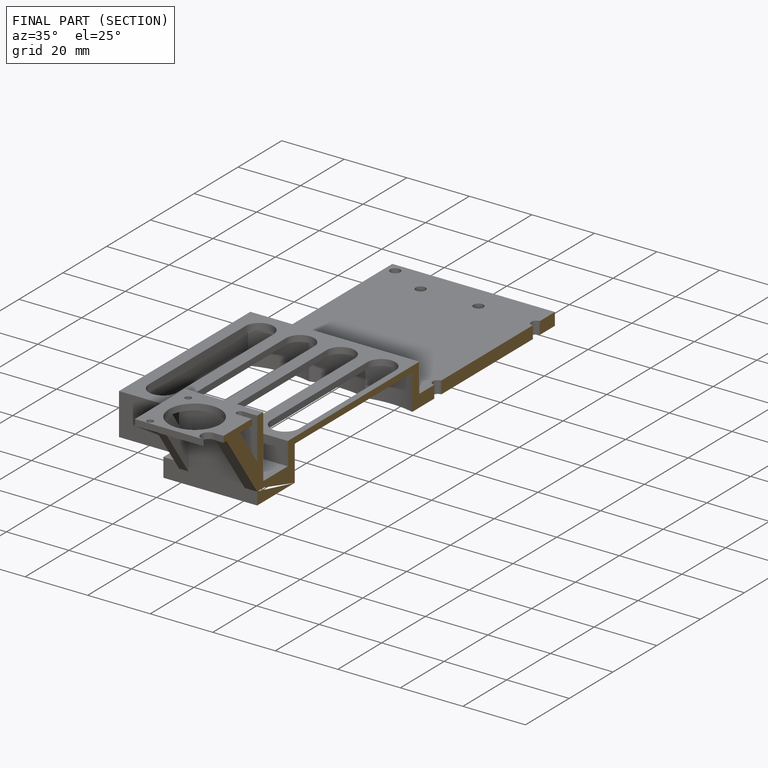
[diagram: finished part — half-section view (interior)]
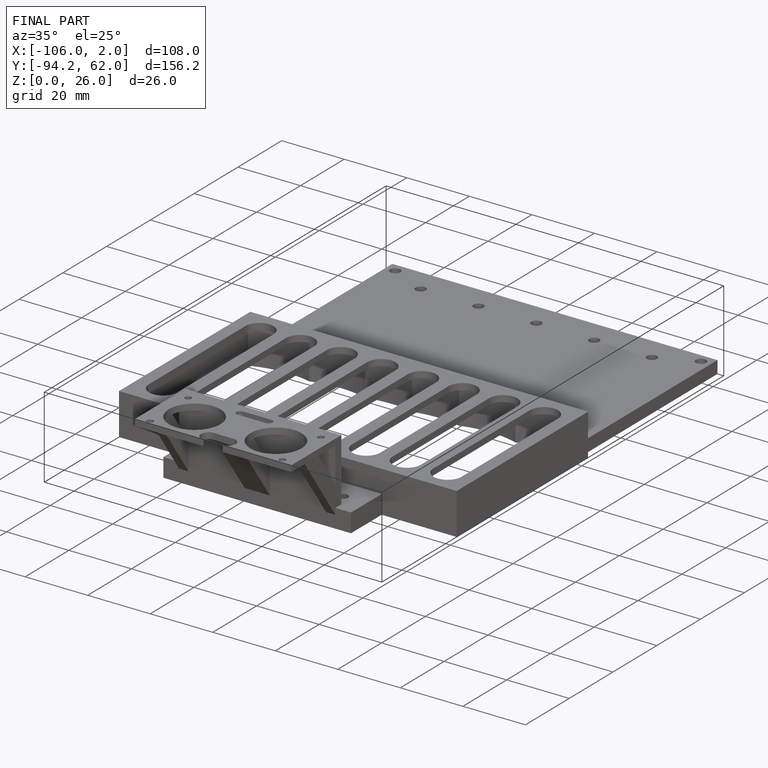
[diagram: finished part — iso view with bounding-box wireframe]
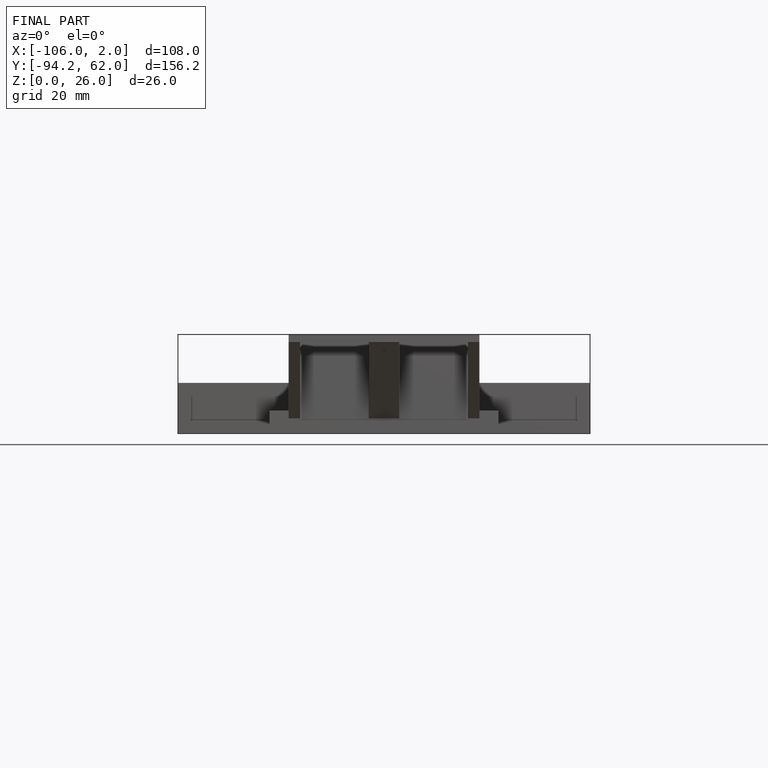
[diagram: finished part — front view with bounding-box wireframe]
